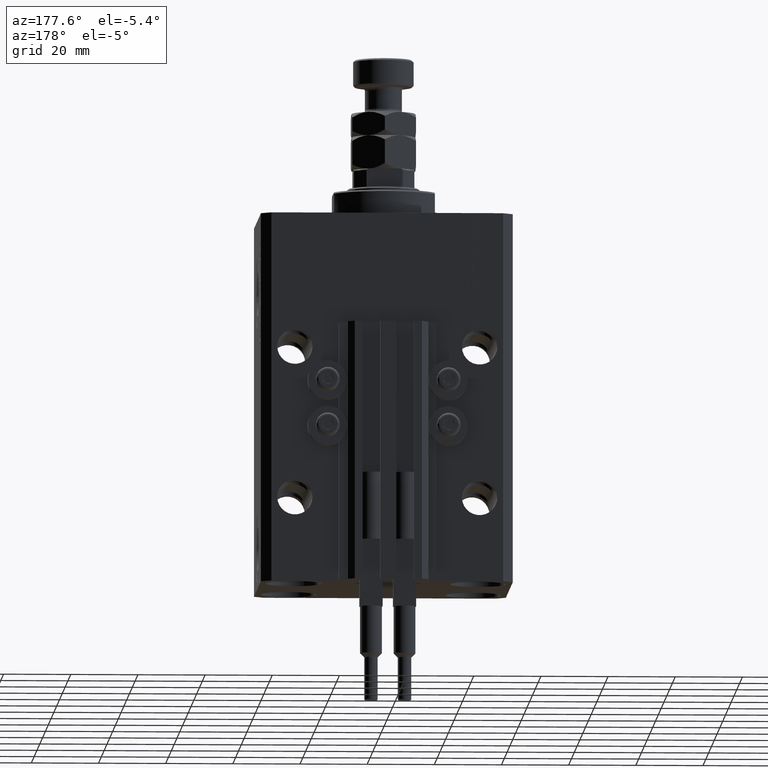
[diagram: clean part render]
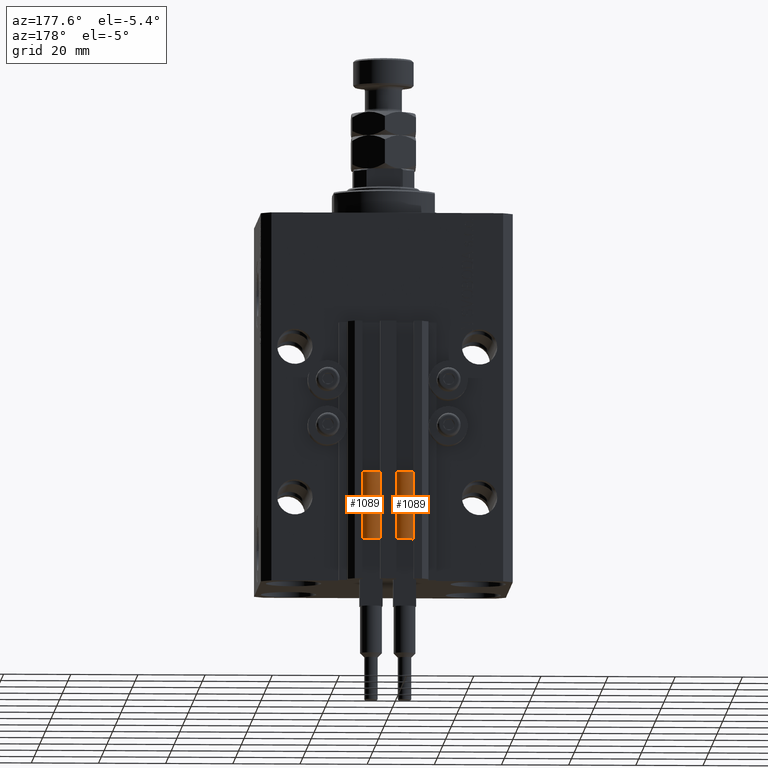
[diagram: same view with one multi-face feature highlighted, each face labeled with its STEP entity id]
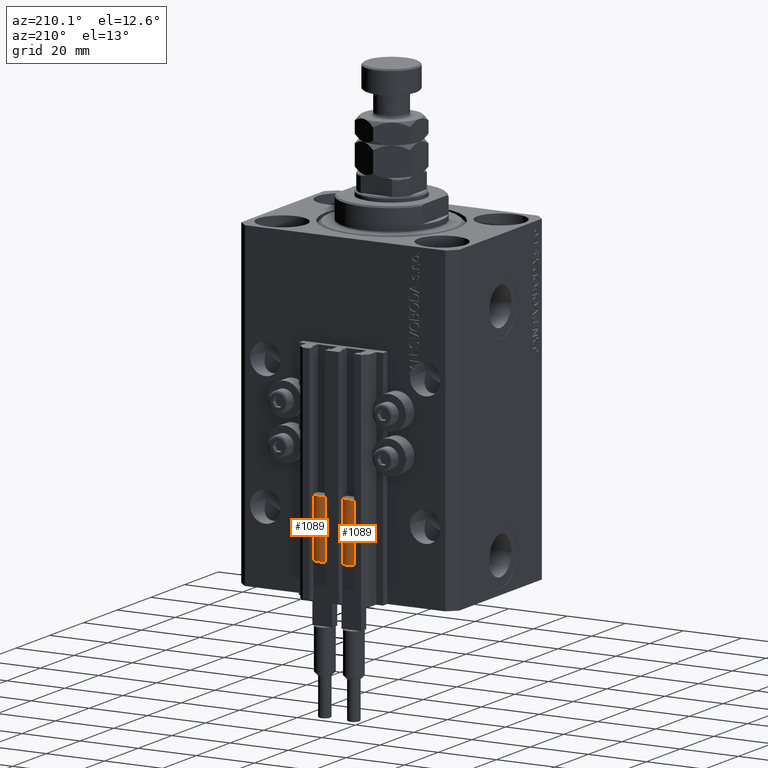
[diagram: same view with one multi-face feature highlighted, each face labeled with its STEP entity id]
A machine part, auxiliary view. The highlighted faces form ONE feature: a constant-radius fillet chain: 2 tangent blend faces with common blend radius 3.4 mm. The faces share edges in the B-rep.
A second angle (auxiliary view) of the same feature is appended — it is thin or edge-on in the first view.
Their STEP definitions:
[1] entity #1089 (Cylinder):
#552 = EDGE_CURVE ( 'NONE', #28002, #25313, #37959, .T. ) ;
#659 = DIRECTION ( 'NONE',  ( 1.000000000000000000, 0.000000000000000000, 0.000000000000000000 ) ) ;
#719 = CIRCLE ( 'NONE', #17814, 3.400000000000000355 ) ;
#1089 = ADVANCED_FACE ( 'NONE', ( #48990 ), #41843, .T. ) ;
#1126 = DIRECTION ( 'NONE',  ( -0.000000000000000000, -0.000000000000000000, -1.000000000000000000 ) ) ;
#1332 = CARTESIAN_POINT ( 'NONE',  ( 3.400000000000000355, 4.163799117101001052E-16, 0.000000000000000000 ) ) ;
#1884 = CARTESIAN_POINT ( 'NONE',  ( 0.000000000000000000, 0.000000000000000000, 20.00000000000000000 ) ) ;
#1969 = EDGE_CURVE ( 'NONE', #28002, #25457, #9289, .T. ) ;
#2288 = VECTOR ( 'NONE', #1126, 1000.000000000000000 ) ;
#2647 = DIRECTION ( 'NONE',  ( -0.000000000000000000, -0.000000000000000000, -1.000000000000000000 ) ) ;
#2874 = DIRECTION ( 'NONE',  ( -0.000000000000000000, -0.000000000000000000, -1.000000000000000000 ) ) ;
#5298 = EDGE_CURVE ( 'NONE', #25457, #48239, #46977, .T. ) ;
#6316 = AXIS2_PLACEMENT_3D ( 'NONE', #12441, #16000, #15762 ) ;
#7122 = AXIS2_PLACEMENT_3D ( 'NONE', #1884, #2647, #29873 ) ;
#7565 = ORIENTED_EDGE ( 'NONE', *, *, #5298, .T. ) ;
#8062 = EDGE_CURVE ( 'NONE', #44247, #10473, #10253, .T. ) ;
#9289 = LINE ( 'NONE', #28635, #2288 ) ;
#10253 = CIRCLE ( 'NONE', #41937, 3.400000000000000355 ) ;
#10473 = VERTEX_POINT ( 'NONE', #15569 ) ;
#12441 = CARTESIAN_POINT ( 'NONE',  ( 0.000000000000000000, 0.000000000000000000, 0.000000000000000000 ) ) ;
#12977 = DIRECTION ( 'NONE',  ( 1.000000000000000000, 0.000000000000000000, 0.000000000000000000 ) ) ;
#13382 = ORIENTED_EDGE ( 'NONE', *, *, #8062, .F. ) ;
#15474 = DIRECTION ( 'NONE',  ( 1.000000000000000000, 0.000000000000000000, 0.000000000000000000 ) ) ;
#15569 = CARTESIAN_POINT ( 'NONE',  ( -3.399999999999999467, -4.915049848600952119E-16, 20.00000000000000000 ) ) ;
#15762 = DIRECTION ( 'NONE',  ( 1.000000000000000000, 0.000000000000000000, 0.000000000000000000 ) ) ;
#16000 = DIRECTION ( 'NONE',  ( 0.000000000000000000, 0.000000000000000000, 1.000000000000000000 ) ) ;
#16388 = CARTESIAN_POINT ( 'NONE',  ( -3.400000000000000355, 0.000000000000000000, 0.000000000000000000 ) ) ;
#16619 = CARTESIAN_POINT ( 'NONE',  ( 3.051229260478471428, 1.500000000000000000, 20.00000000000000000 ) ) ;
#16790 = DIRECTION ( 'NONE',  ( 0.000000000000000000, 0.000000000000000000, 1.000000000000000000 ) ) ;
#17814 = AXIS2_PLACEMENT_3D ( 'NONE', #47016, #39611, #659 ) ;
#19513 = DIRECTION ( 'NONE',  ( 0.000000000000000000, 0.000000000000000000, 1.000000000000000000 ) ) ;
#23353 = EDGE_LOOP ( 'NONE', ( #39692, #31395, #7565, #36647, #13382, #50333 ) ) ;
#24433 = CARTESIAN_POINT ( 'NONE',  ( 0.000000000000000000, 0.000000000000000000, 20.00000000000000000 ) ) ;
#25313 = VERTEX_POINT ( 'NONE', #16619 ) ;
#25457 = VERTEX_POINT ( 'NONE', #1332 ) ;
#27160 = CARTESIAN_POINT ( 'NONE',  ( 0.000000000000000000, 0.000000000000000000, 20.00000000000000000 ) ) ;
#28002 = VERTEX_POINT ( 'NONE', #33475 ) ;
#28635 = CARTESIAN_POINT ( 'NONE',  ( 3.400000000000000355, 4.163799117101001052E-16, 20.00000000000000000 ) ) ;
#28791 = VECTOR ( 'NONE', #2874, 1000.000000000000000 ) ;
#29218 = EDGE_CURVE ( 'NONE', #10473, #48239, #33680, .T. ) ;
#29873 = DIRECTION ( 'NONE',  ( -1.000000000000000000, 0.000000000000000000, 0.000000000000000000 ) ) ;
#31395 = ORIENTED_EDGE ( 'NONE', *, *, #1969, .T. ) ;
#33475 = CARTESIAN_POINT ( 'NONE',  ( 3.400000000000000355, 0.000000000000000000, 20.00000000000000000 ) ) ;
#33680 = LINE ( 'NONE', #37746, #28791 ) ;
#36647 = ORIENTED_EDGE ( 'NONE', *, *, #29218, .F. ) ;
#37746 = CARTESIAN_POINT ( 'NONE',  ( -3.400000000000000355, 0.000000000000000000, 20.00000000000000000 ) ) ;
#37959 = CIRCLE ( 'NONE', #48554, 3.400000000000000355 ) ;
#39611 = DIRECTION ( 'NONE',  ( 0.000000000000000000, 0.000000000000000000, 1.000000000000000000 ) ) ;
#39692 = ORIENTED_EDGE ( 'NONE', *, *, #552, .F. ) ;
#40951 = EDGE_CURVE ( 'NONE', #25313, #44247, #719, .T. ) ;
#41843 = CYLINDRICAL_SURFACE ( 'NONE', #7122, 3.400000000000000355 ) ;
#41937 = AXIS2_PLACEMENT_3D ( 'NONE', #24433, #16790, #12977 ) ;
#43862 = CARTESIAN_POINT ( 'NONE',  ( -3.051229260478471428, 1.500000000000000000, 20.00000000000000000 ) ) ;
#44247 = VERTEX_POINT ( 'NONE', #43862 ) ;
#46977 = CIRCLE ( 'NONE', #6316, 3.400000000000000355 ) ;
#47016 = CARTESIAN_POINT ( 'NONE',  ( 0.000000000000000000, 0.000000000000000000, 20.00000000000000000 ) ) ;
#48239 = VERTEX_POINT ( 'NONE', #16388 ) ;
#48554 = AXIS2_PLACEMENT_3D ( 'NONE', #27160, #19513, #15474 ) ;
#48990 = FACE_OUTER_BOUND ( 'NONE', #23353, .T. ) ;
#50333 = ORIENTED_EDGE ( 'NONE', *, *, #40951, .F. ) ;
[2] entity #1089 (Cylinder):
#552 = EDGE_CURVE ( 'NONE', #28002, #25313, #37959, .T. ) ;
#659 = DIRECTION ( 'NONE',  ( 1.000000000000000000, 0.000000000000000000, 0.000000000000000000 ) ) ;
#719 = CIRCLE ( 'NONE', #17814, 3.400000000000000355 ) ;
#1089 = ADVANCED_FACE ( 'NONE', ( #48990 ), #41843, .T. ) ;
#1126 = DIRECTION ( 'NONE',  ( -0.000000000000000000, -0.000000000000000000, -1.000000000000000000 ) ) ;
#1332 = CARTESIAN_POINT ( 'NONE',  ( 3.400000000000000355, 4.163799117101001052E-16, 0.000000000000000000 ) ) ;
#1884 = CARTESIAN_POINT ( 'NONE',  ( 0.000000000000000000, 0.000000000000000000, 20.00000000000000000 ) ) ;
#1969 = EDGE_CURVE ( 'NONE', #28002, #25457, #9289, .T. ) ;
#2288 = VECTOR ( 'NONE', #1126, 1000.000000000000000 ) ;
#2647 = DIRECTION ( 'NONE',  ( -0.000000000000000000, -0.000000000000000000, -1.000000000000000000 ) ) ;
#2874 = DIRECTION ( 'NONE',  ( -0.000000000000000000, -0.000000000000000000, -1.000000000000000000 ) ) ;
#5298 = EDGE_CURVE ( 'NONE', #25457, #48239, #46977, .T. ) ;
#6316 = AXIS2_PLACEMENT_3D ( 'NONE', #12441, #16000, #15762 ) ;
#7122 = AXIS2_PLACEMENT_3D ( 'NONE', #1884, #2647, #29873 ) ;
#7565 = ORIENTED_EDGE ( 'NONE', *, *, #5298, .T. ) ;
#8062 = EDGE_CURVE ( 'NONE', #44247, #10473, #10253, .T. ) ;
#9289 = LINE ( 'NONE', #28635, #2288 ) ;
#10253 = CIRCLE ( 'NONE', #41937, 3.400000000000000355 ) ;
#10473 = VERTEX_POINT ( 'NONE', #15569 ) ;
#12441 = CARTESIAN_POINT ( 'NONE',  ( 0.000000000000000000, 0.000000000000000000, 0.000000000000000000 ) ) ;
#12977 = DIRECTION ( 'NONE',  ( 1.000000000000000000, 0.000000000000000000, 0.000000000000000000 ) ) ;
#13382 = ORIENTED_EDGE ( 'NONE', *, *, #8062, .F. ) ;
#15474 = DIRECTION ( 'NONE',  ( 1.000000000000000000, 0.000000000000000000, 0.000000000000000000 ) ) ;
#15569 = CARTESIAN_POINT ( 'NONE',  ( -3.399999999999999467, -4.915049848600952119E-16, 20.00000000000000000 ) ) ;
#15762 = DIRECTION ( 'NONE',  ( 1.000000000000000000, 0.000000000000000000, 0.000000000000000000 ) ) ;
#16000 = DIRECTION ( 'NONE',  ( 0.000000000000000000, 0.000000000000000000, 1.000000000000000000 ) ) ;
#16388 = CARTESIAN_POINT ( 'NONE',  ( -3.400000000000000355, 0.000000000000000000, 0.000000000000000000 ) ) ;
#16619 = CARTESIAN_POINT ( 'NONE',  ( 3.051229260478471428, 1.500000000000000000, 20.00000000000000000 ) ) ;
#16790 = DIRECTION ( 'NONE',  ( 0.000000000000000000, 0.000000000000000000, 1.000000000000000000 ) ) ;
#17814 = AXIS2_PLACEMENT_3D ( 'NONE', #47016, #39611, #659 ) ;
#19513 = DIRECTION ( 'NONE',  ( 0.000000000000000000, 0.000000000000000000, 1.000000000000000000 ) ) ;
#23353 = EDGE_LOOP ( 'NONE', ( #39692, #31395, #7565, #36647, #13382, #50333 ) ) ;
#24433 = CARTESIAN_POINT ( 'NONE',  ( 0.000000000000000000, 0.000000000000000000, 20.00000000000000000 ) ) ;
#25313 = VERTEX_POINT ( 'NONE', #16619 ) ;
#25457 = VERTEX_POINT ( 'NONE', #1332 ) ;
#27160 = CARTESIAN_POINT ( 'NONE',  ( 0.000000000000000000, 0.000000000000000000, 20.00000000000000000 ) ) ;
#28002 = VERTEX_POINT ( 'NONE', #33475 ) ;
#28635 = CARTESIAN_POINT ( 'NONE',  ( 3.400000000000000355, 4.163799117101001052E-16, 20.00000000000000000 ) ) ;
#28791 = VECTOR ( 'NONE', #2874, 1000.000000000000000 ) ;
#29218 = EDGE_CURVE ( 'NONE', #10473, #48239, #33680, .T. ) ;
#29873 = DIRECTION ( 'NONE',  ( -1.000000000000000000, 0.000000000000000000, 0.000000000000000000 ) ) ;
#31395 = ORIENTED_EDGE ( 'NONE', *, *, #1969, .T. ) ;
#33475 = CARTESIAN_POINT ( 'NONE',  ( 3.400000000000000355, 0.000000000000000000, 20.00000000000000000 ) ) ;
#33680 = LINE ( 'NONE', #37746, #28791 ) ;
#36647 = ORIENTED_EDGE ( 'NONE', *, *, #29218, .F. ) ;
#37746 = CARTESIAN_POINT ( 'NONE',  ( -3.400000000000000355, 0.000000000000000000, 20.00000000000000000 ) ) ;
#37959 = CIRCLE ( 'NONE', #48554, 3.400000000000000355 ) ;
#39611 = DIRECTION ( 'NONE',  ( 0.000000000000000000, 0.000000000000000000, 1.000000000000000000 ) ) ;
#39692 = ORIENTED_EDGE ( 'NONE', *, *, #552, .F. ) ;
#40951 = EDGE_CURVE ( 'NONE', #25313, #44247, #719, .T. ) ;
#41843 = CYLINDRICAL_SURFACE ( 'NONE', #7122, 3.400000000000000355 ) ;
#41937 = AXIS2_PLACEMENT_3D ( 'NONE', #24433, #16790, #12977 ) ;
#43862 = CARTESIAN_POINT ( 'NONE',  ( -3.051229260478471428, 1.500000000000000000, 20.00000000000000000 ) ) ;
#44247 = VERTEX_POINT ( 'NONE', #43862 ) ;
#46977 = CIRCLE ( 'NONE', #6316, 3.400000000000000355 ) ;
#47016 = CARTESIAN_POINT ( 'NONE',  ( 0.000000000000000000, 0.000000000000000000, 20.00000000000000000 ) ) ;
#48239 = VERTEX_POINT ( 'NONE', #16388 ) ;
#48554 = AXIS2_PLACEMENT_3D ( 'NONE', #27160, #19513, #15474 ) ;
#48990 = FACE_OUTER_BOUND ( 'NONE', #23353, .T. ) ;
#50333 = ORIENTED_EDGE ( 'NONE', *, *, #40951, .F. ) ;